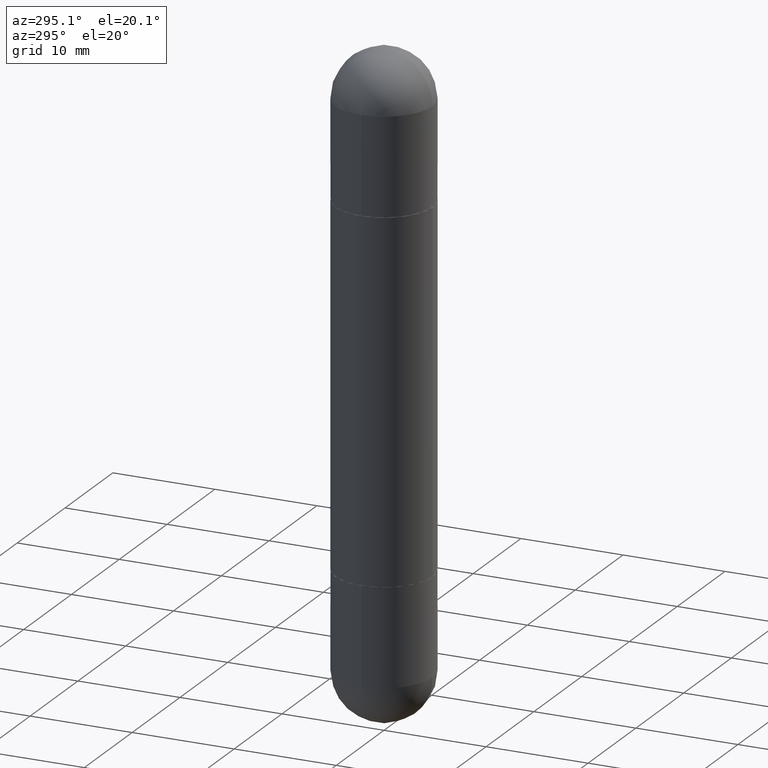
[diagram: clean part render]
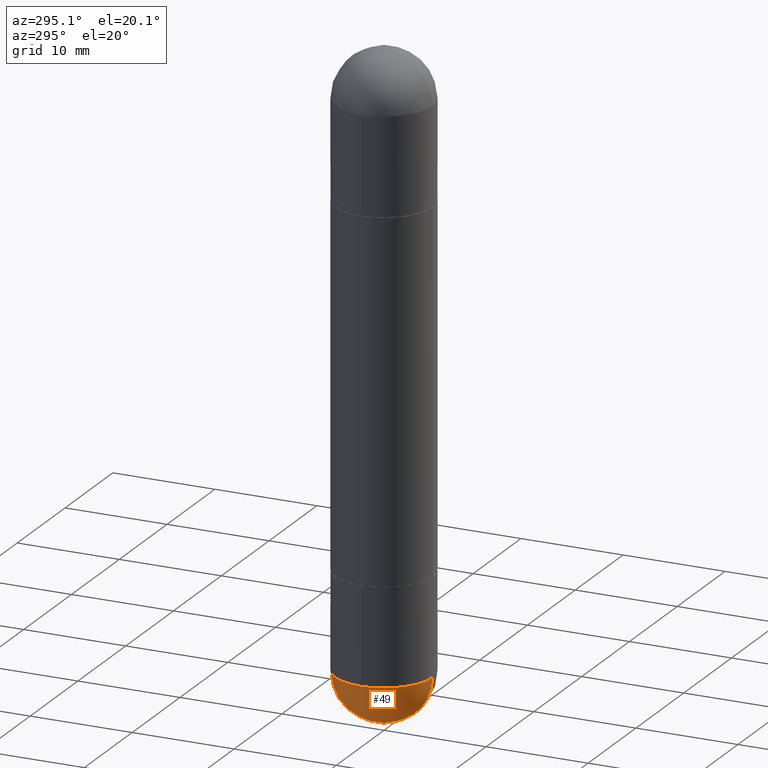
[diagram: same view with one face highlighted and labeled with its STEP entity id]
A machine part, auxiliary view. The second image highlights one B-rep face of the part: STEP entity #49.
In plain terms, the highlighted spherical surface has radius 4.7625 mm.
Its self-contained STEP definition (entity closure, byte-faithful):
#1 = CARTESIAN_POINT ( 'NONE',  ( 5.655146614303128380E-29, -8.074050596074775072E-15, -2.312500000000000000 ) ) ;
#31 = CARTESIAN_POINT ( 'NONE',  ( -1.332267629550134009E-15, -0.1875000000000084932, -2.312499999999999556 ) ) ;
#43 = AXIS2_PLACEMENT_3D ( 'NONE', #708, #586, #343 ) ;
#45 = DIRECTION ( 'NONE',  ( 1.000000000000000000, -6.982962677686270655E-15, 0.000000000000000000 ) ) ;
#49 = ADVANCED_FACE ( 'NONE', ( #702 ), #658, .T. ) ;
#80 = DIRECTION ( 'NONE',  ( 6.982962677686266711E-15, 1.000000000000000000, -2.913971193241875639E-15 ) ) ;
#83 = EDGE_LOOP ( 'NONE', ( #321, #589, #139, #520 ) ) ;
#100 = DIRECTION ( 'NONE',  ( 6.982962677686265922E-15, 1.000000000000000000, 0.000000000000000000 ) ) ;
#102 = VERTEX_POINT ( 'NONE', #467 ) ;
#112 = EDGE_CURVE ( 'NONE', #711, #200, #339, .T. ) ;
#121 = DIRECTION ( 'NONE',  ( 1.000000000000000000, -6.982962677686265922E-15, 4.883557194083112340E-29 ) ) ;
#129 = DIRECTION ( 'NONE',  ( 1.000000000000000000, -6.982962677686270655E-15, 0.000000000000000000 ) ) ;
#137 = CARTESIAN_POINT ( 'NONE',  ( 5.324026836389243254E-29, -8.548232964214825368E-15, -2.312500000000000000 ) ) ;
#139 = ORIENTED_EDGE ( 'NONE', *, *, #742, .F. ) ;
#170 = VERTEX_POINT ( 'NONE', #412 ) ;
#172 = CIRCLE ( 'NONE', #426, 0.1875000000000003331 ) ;
#200 = VERTEX_POINT ( 'NONE', #31 ) ;
#208 = AXIS2_PLACEMENT_3D ( 'NONE', #1, #508, #129 ) ;
#321 = ORIENTED_EDGE ( 'NONE', *, *, #790, .F. ) ;
#339 = CIRCLE ( 'NONE', #43, 0.1875000000000003331 ) ;
#343 = DIRECTION ( 'NONE',  ( -7.105427357600999492E-15, -1.000000000000000000, 0.000000000000000000 ) ) ;
#373 = DIRECTION ( 'NONE',  ( -2.445468806185136597E-29, 3.491481338843145583E-15, 1.000000000000000000 ) ) ;
#412 = CARTESIAN_POINT ( 'NONE',  ( -0.1875000000000000555, -6.088003085826207710E-15, -2.312500000000000000 ) ) ;
#426 = AXIS2_PLACEMENT_3D ( 'NONE', #620, #121, #100 ) ;
#467 = CARTESIAN_POINT ( 'NONE',  ( 1.309305502066231017E-15, 0.1874999999999918954, -2.312500000000000444 ) ) ;
#473 = AXIS2_PLACEMENT_3D ( 'NONE', #137, #651, #80 ) ;
#476 = CARTESIAN_POINT ( 'NONE',  ( 5.790569421510013204E-29, -9.191404651505909607E-15, -2.500000000000000000 ) ) ;
#490 = CARTESIAN_POINT ( 'NONE',  ( 5.655146614303128380E-29, -8.074050596074775072E-15, -2.312500000000000000 ) ) ;
#508 = DIRECTION ( 'NONE',  ( -2.445468806185136597E-29, 3.491481338843145583E-15, 1.000000000000000000 ) ) ;
#520 = ORIENTED_EDGE ( 'NONE', *, *, #562, .F. ) ;
#562 = EDGE_CURVE ( 'NONE', #102, #170, #738, .T. ) ;
#586 = DIRECTION ( 'NONE',  ( -1.000000000000000000, 7.105427357601001070E-15, -4.926315508542082329E-29 ) ) ;
#589 = ORIENTED_EDGE ( 'NONE', *, *, #112, .T. ) ;
#620 = CARTESIAN_POINT ( 'NONE',  ( 5.324026836389243254E-29, -8.548232964214825368E-15, -2.312500000000000000 ) ) ;
#632 = AXIS2_PLACEMENT_3D ( 'NONE', #490, #373, #45 ) ;
#651 = DIRECTION ( 'NONE',  ( -1.000000000000000000, 6.982962677686266711E-15, -4.883557194083113462E-29 ) ) ;
#658 = SPHERICAL_SURFACE ( 'NONE', #473, 0.1875000000000003331 ) ;
#702 = FACE_OUTER_BOUND ( 'NONE', #83, .T. ) ;
#708 = CARTESIAN_POINT ( 'NONE',  ( 5.324026836389243254E-29, -8.548232964214825368E-15, -2.312500000000000000 ) ) ;
#711 = VERTEX_POINT ( 'NONE', #476 ) ;
#738 = CIRCLE ( 'NONE', #208, 0.1875000000000000555 ) ;
#742 = EDGE_CURVE ( 'NONE', #170, #200, #792, .T. ) ;
#790 = EDGE_CURVE ( 'NONE', #711, #102, #172, .T. ) ;
#792 = CIRCLE ( 'NONE', #632, 0.1875000000000000555 ) ;